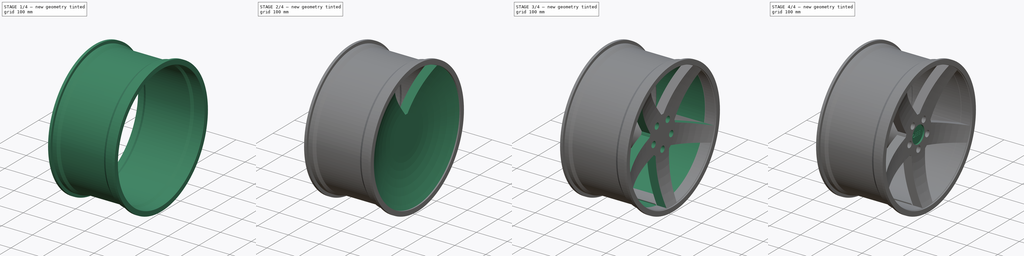
[diagram: build sequence overview — one tinted view per stage of 4, left to right]
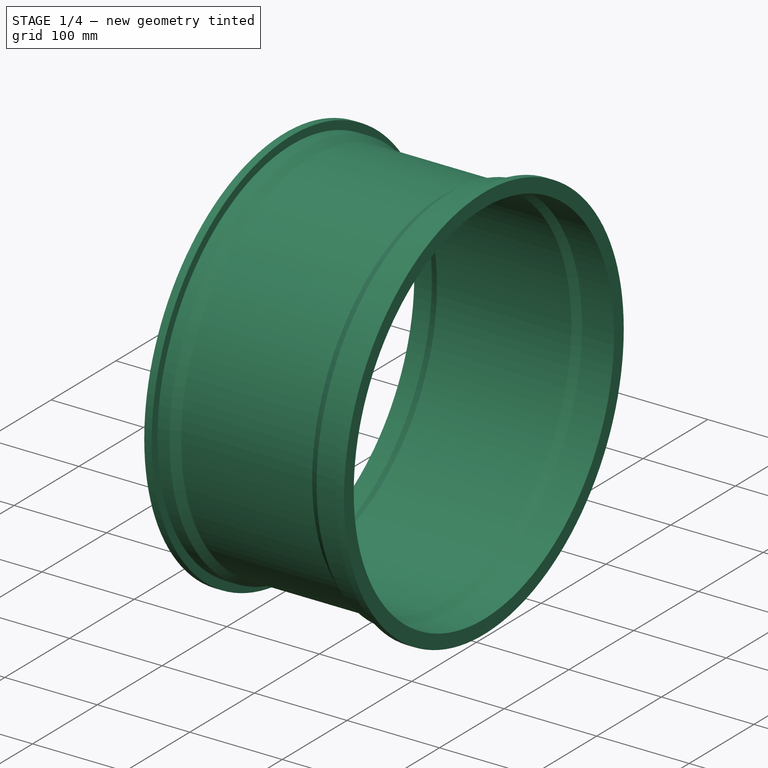
[diagram: stage 1 of 4 — iso view after this stage's code; geometry added in this stage tinted green]
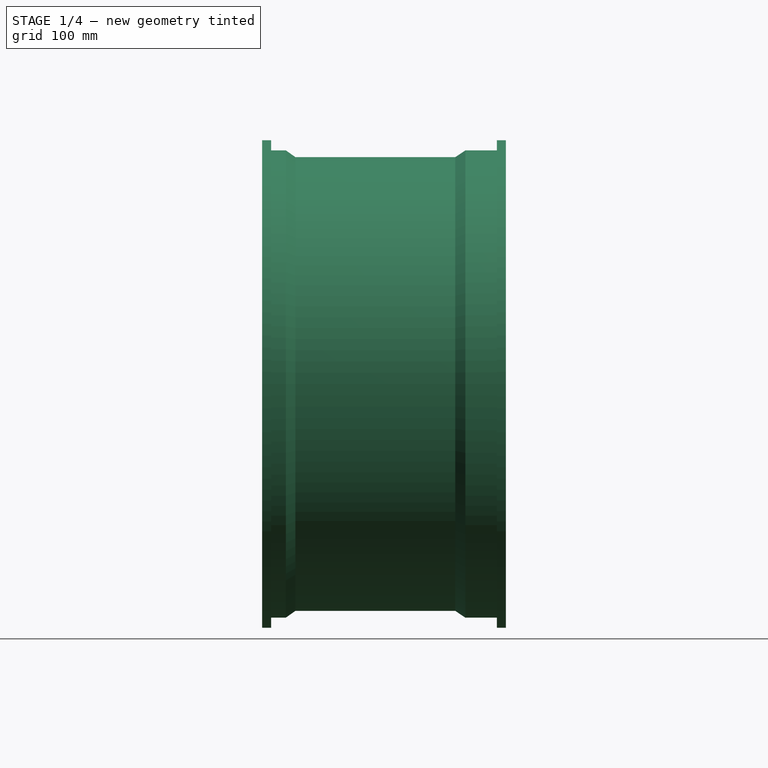
[diagram: stage 1 of 4 — front view after this stage's code; geometry added in this stage tinted green]
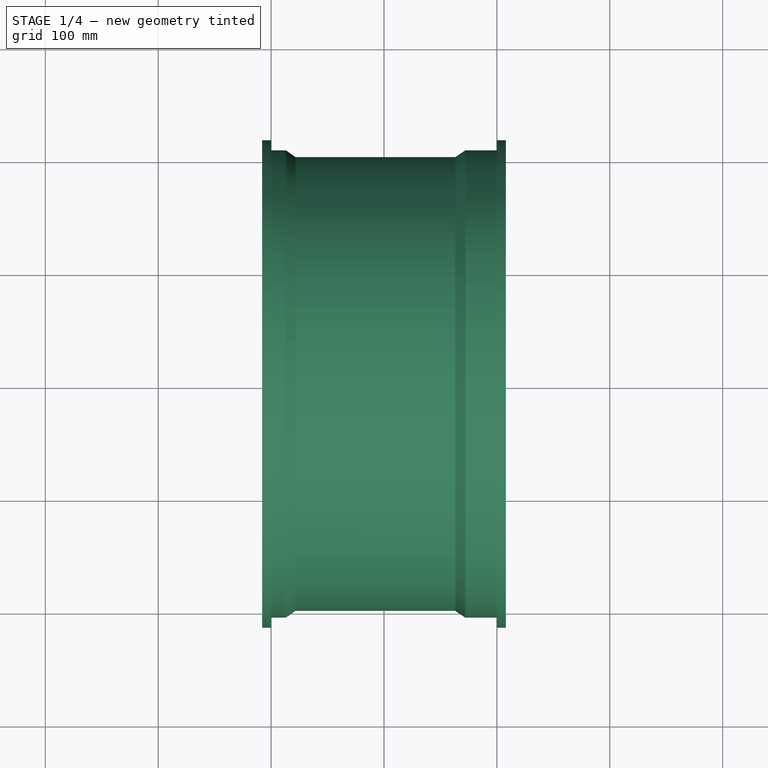
[diagram: stage 1 of 4 — top view after this stage's code; geometry added in this stage tinted green]
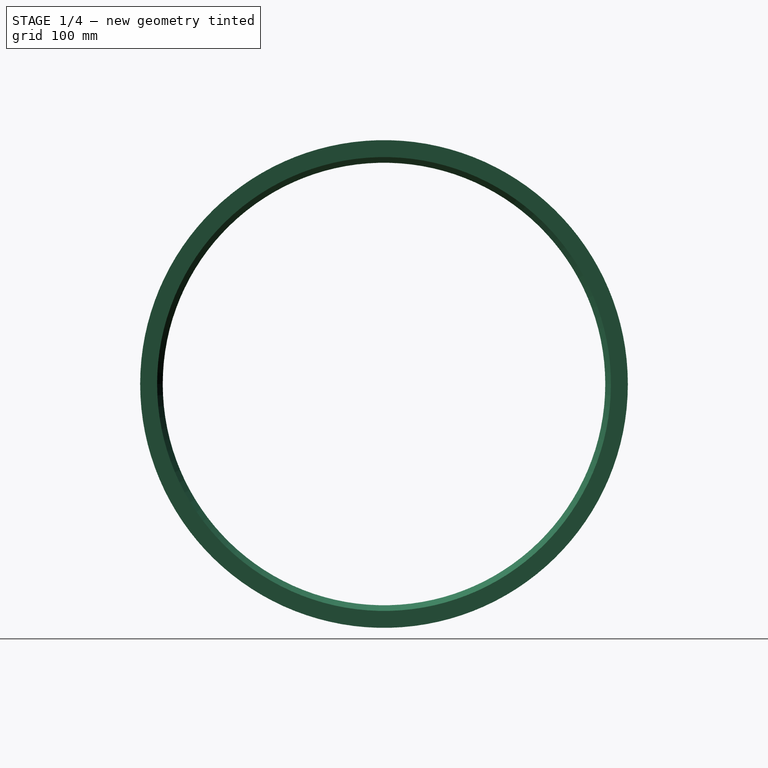
[diagram: stage 1 of 4 — right view after this stage's code; geometry added in this stage tinted green]
FCSTD DOCUMENT  (FreeCAD 0.18R4 (GitTag))
Label: VossenCV3
License: All rights reserved
LicenseURL: http://en.wikipedia.org/wiki/All_rights_reserved
objects: Sketcher::SketchObject×8, PartDesign::Pocket×6, PartDesign::Revolution×2, PartDesign::PolarPattern×2, PartDesign::Body×1
note: 27 computed .brp shape members not serialized (recipe doc carries the construction recipe); baked Part::Feature solids carry a one-line shape summary decoded from their .brp

FEATURE [Sketcher::SketchObject] Sketch
  MapMode = 5
  Support = -> [XY_Plane]
  sketch-geometry (21):
    g0: LineSegment [constr] StartX=-108 StartY=216 StartZ=0 EndX=108 EndY=216 EndZ=0
    g1: LineSegment [constr] StartX=108 StartY=216 StartZ=0 EndX=108 EndY=-216 EndZ=0
    g2: LineSegment [constr] StartX=108 StartY=-216 StartZ=0 EndX=-108 EndY=-216 EndZ=0
    g3: LineSegment [constr] StartX=-108 StartY=-216 StartZ=0 EndX=-108 EndY=216 EndZ=0
    g4: LineSegment StartX=65.3985 StartY=196 StartZ=0 EndX=73.2836 EndY=201 EndZ=0
    g5: LineSegment StartX=73.2836 StartY=201 StartZ=0 EndX=108 EndY=201 EndZ=0
    g6: LineSegment StartX=108 StartY=201 StartZ=0 EndX=108 EndY=216 EndZ=0
    g7: LineSegment StartX=108 StartY=216 StartZ=0 EndX=100 EndY=216 EndZ=0
    g8: LineSegment StartX=100 StartY=216 StartZ=0 EndX=100 EndY=207 EndZ=0
    g9: LineSegment StartX=100 StartY=207 StartZ=0 EndX=72.0305 EndY=207 EndZ=0
    g10: LineSegment StartX=72.0305 StartY=207 StartZ=0 EndX=63.161 EndY=201.026 EndZ=0
    g11: LineSegment StartX=-78.4786 StartY=201.026 StartZ=0 EndX=-86.9086 EndY=207 EndZ=0
    g12: LineSegment StartX=-86.9086 StartY=207 StartZ=0 EndX=-100 EndY=207 EndZ=0
    g13: LineSegment StartX=-100 StartY=207 StartZ=0 EndX=-100 EndY=216 EndZ=0
    g14: LineSegment StartX=-100 StartY=216 StartZ=0 EndX=-108 EndY=216 EndZ=0
    g15: LineSegment StartX=-108 StartY=216 StartZ=0 EndX=-108 EndY=201 EndZ=0
    g16: LineSegment StartX=-108 StartY=201 StartZ=0 EndX=-99.2981 EndY=201 EndZ=0
    g17: LineSegment StartX=-99.2981 StartY=201 StartZ=0 EndX=-89.0181 EndY=201 EndZ=0
    g18: LineSegment StartX=-89.0181 StartY=201 StartZ=0 EndX=-80.0096 EndY=196 EndZ=0
    g19: LineSegment StartX=-78.4786 StartY=201.026 StartZ=0 EndX=63.161 EndY=201.026 EndZ=0
    g20: LineSegment StartX=-80.0096 StartY=196 StartZ=0 EndX=65.3985 EndY=196 EndZ=0
  constraints (48):
    c: Coincident(g0,g1)
    c: Coincident(g1,g2)
    c: Coincident(g2,g3)
    c: Coincident(g3,g0)
    c: Horizontal(g2)
    c: Vertical(g3)
    c: DistanceX(g0,g0) = 216
    c: DistanceY(g1,g1) = 432
    c: Symmetric(g0,g0,g-2)
    c: Symmetric(g1,g0,g-1)
    c: Coincident(g4,g5)
    c: Coincident(g5,g6)
    c: Coincident(g6,g7)
    c: Coincident(g7,g8)
    c: Coincident(g8,g9)
    c: Coincident(g9,g10)
    c: Coincident(g11,g12)
    c: Coincident(g12,g13)
    c: Coincident(g13,g14)
    c: Coincident(g14,g15)
    c: Coincident(g15,g16)
    c: Coincident(g16,g17)
    c: Coincident(g17,g18)
    c: Horizontal(g5)
    c: Horizontal(g9)
    c: Vertical(g6)
    c: Vertical(g8)
    c: Horizontal(g12)
    c: Horizontal(g17)
    c: Horizontal(g16)
    c: Vertical(g13)
    c: Vertical(g15)
    c: Horizontal(g7)
    c: Horizontal(g14)
    c: DistanceX(g14,g14) = 8
    c: DistanceY(g15,g14) = 15
    c: Coincident(g0,g14)
    c: DistanceY(g12,g13) = 9
    c: DistanceY(g6,g6) = 15
    c: DistanceX(g7,g7) = 8
    c: Coincident(g0,g6)
    c: DistanceY(g8,g7) = 9
    c: Horizontal(g19)
    c: Coincident(g10,g19)
    c: Coincident(g19,g11)
    c: Horizontal(g20)
    c: Coincident(g20,g18)
    c: Coincident(g4,g20)
FEATURE [PartDesign::Revolution] Revolution
  Angle = 360
  Axis = (1,0,0)
  Base = (0,0,0)
  Profile = -> Sketch
  ReferenceAxis = -> Sketch [H_Axis]
FEATURE [Sketcher::SketchObject] Sketch001
  MapMode = 5
  Placement = pos=(0,0,0) rot=(1,0,0;1.5708rad)
  Support = -> [XZ_Plane]
  sketch-geometry (9):
    g0: LineSegment StartX=0 StartY=0 StartZ=0 EndX=72.6833 EndY=0 EndZ=0
    g1: LineSegment StartX=72.6833 StartY=0 StartZ=0 EndX=72.6833 EndY=60 EndZ=0
    g2: LineSegment StartX=106.769 StartY=206.912 StartZ=0 EndX=100.988 EndY=206.912 EndZ=0
    g3: LineSegment StartX=44.5959 StartY=60 StartZ=0 EndX=0 EndY=60 EndZ=0
    g4: LineSegment StartX=0 StartY=60 StartZ=0 EndX=0 EndY=0 EndZ=0
    g5: ArcOfCircle CenterX=397.907 CenterY=61.9544 CenterZ=0 NormalX=0 NormalY=0 NormalZ=1 AngleXU=0 Radius=325.23 StartAngle=2.67963 EndAngle=3.1476
    g6: ArcOfCircle CenterX=397.907 CenterY=61.9544 CenterZ=0 NormalX=0 NormalY=0 NormalZ=1 AngleXU=0 Radius=353.317 StartAngle=2.73812 EndAngle=3.14712
    g7: LineSegment StartX=100.988 StartY=206.912 StartZ=0 EndX=100.988 EndY=200.673 EndZ=0
    g8: LineSegment StartX=72.9614 StartY=200.673 StartZ=0 EndX=100.988 EndY=200.673 EndZ=0
  constraints (21):
    c: Coincident(g0,g1)
    c: Vertical(g1)
    c: Horizontal(g0)
    c: Coincident(g3,g4)
    c: Coincident(g4,g0)
    c: Coincident(g0,g-1)
    c: Horizontal(g3)
    c: Vertical(g4)
    c: DistanceY(g1,g1) = 60
    c: DistanceY(g4,g4) = 60
    c: Coincident(g5,g1)
    c: Coincident(g3,g6)
    c: Coincident(g5,g2)
    c: Horizontal(g2)
    c: Coincident(g7,g2)
    c: Vertical(g7)
    c: Horizontal(g8)
    c: Coincident(g7,g8)
    c: Coincident(g6,g8)
    c: Coincident(g5,g6)
    c: Distance(g5,g1) = 325.23
FEATURE [Sketcher::SketchObject] Sketch002
  MapMode = 5
  Placement = pos=(100.668,0,0) rot=(0.57735,0.57735,0.57735;2.0944rad)
  sketch-geometry (1):
    g0: Circle CenterX=0 CenterY=0 CenterZ=0 NormalX=0 NormalY=0 NormalZ=1 AngleXU=0 Radius=50
  constraints (1):
    c: Radius(g0) = 50
FEATURE [PartDesign::Pocket] Pocket
  BaseFeature = -> Revolution
  Length = 25
  Length2 = 100
  Profile = -> Sketch002
  Type = 0
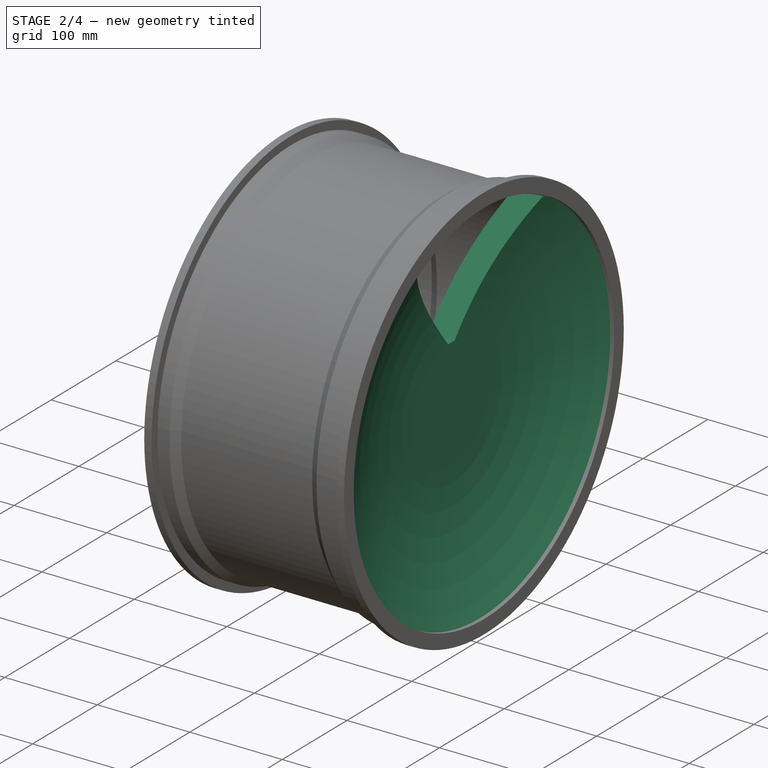
[diagram: stage 2 of 4 — iso view after this stage's code; geometry added in this stage tinted green]
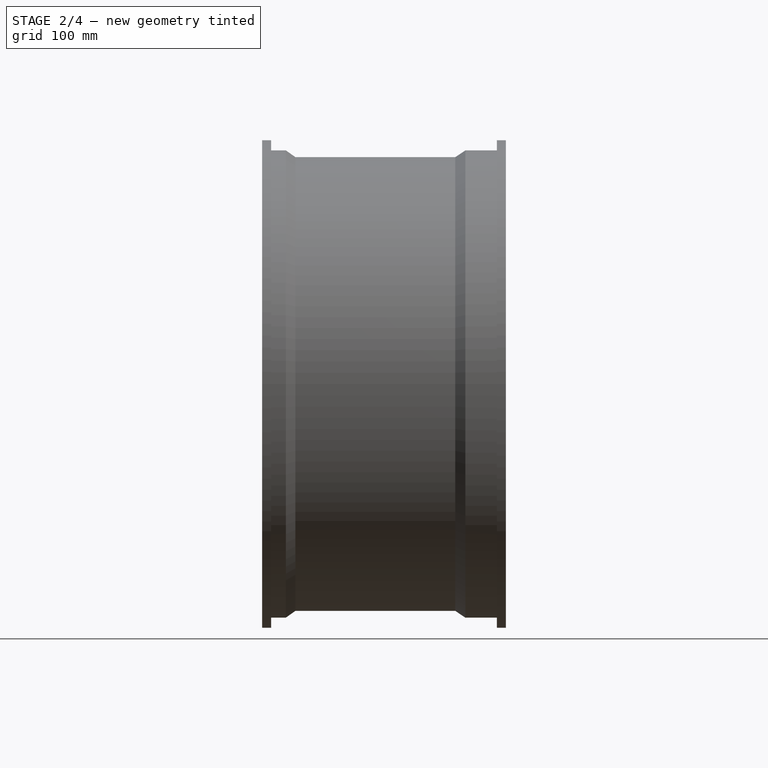
[diagram: stage 2 of 4 — front view after this stage's code; geometry added in this stage tinted green]
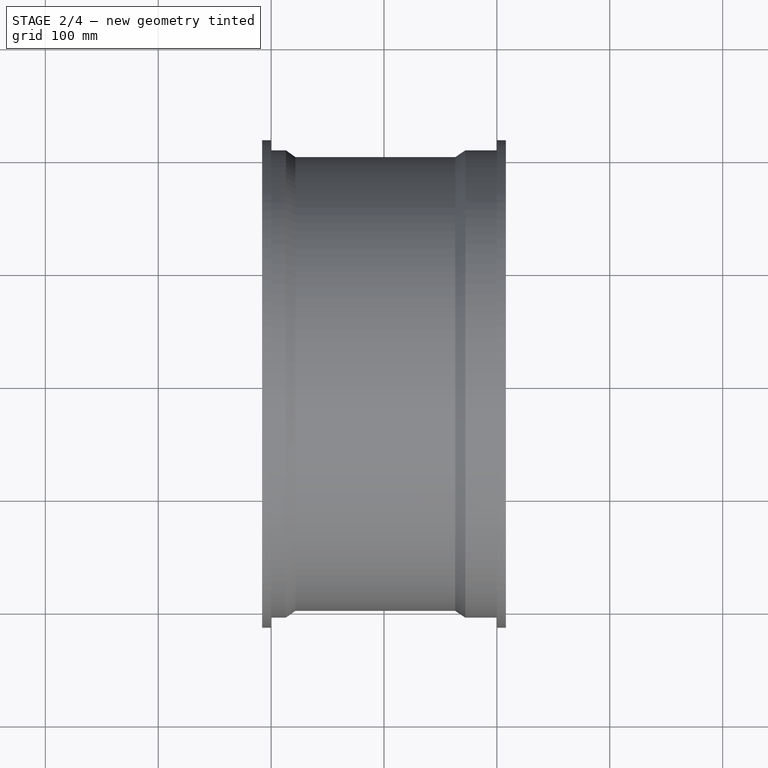
[diagram: stage 2 of 4 — top view after this stage's code; geometry added in this stage tinted green]
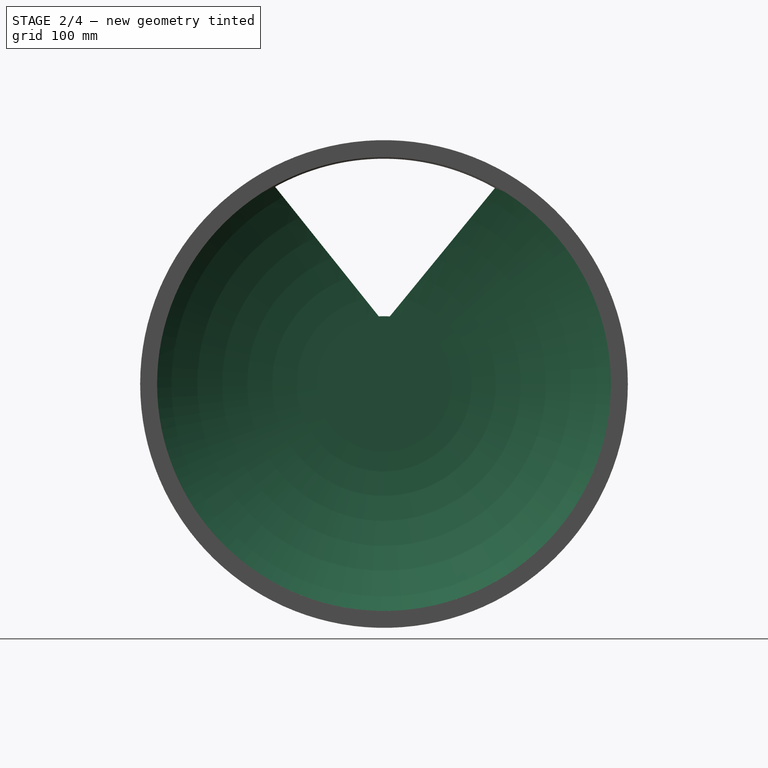
[diagram: stage 2 of 4 — right view after this stage's code; geometry added in this stage tinted green]
FEATURE [Sketcher::SketchObject] Sketch004
  MapMode = 5
  Placement = pos=(0,0,0) rot=(0.57735,0.57735,0.57735;2.0944rad)
  Support = -> [YZ_Plane]
  sketch-geometry (1):
    g0: Circle CenterX=-0.107707 CenterY=35 CenterZ=0 NormalX=0 NormalY=0 NormalZ=1 AngleXU=0 Radius=10
  constraints (2):
    c: Radius(g0) = 10
    c: DistanceY(g-1,g0) = 35
FEATURE [PartDesign::Pocket] Pocket002
  BaseFeature = -> Pocket
  Length = 5
  Length2 = 100
  Midplane = true
  Profile = -> Sketch004
  Type = 1
FEATURE [Sketcher::SketchObject] Sketch005
  MapMode = 5
  Placement = pos=(0,0,0) rot=(0.57735,0.57735,0.57735;2.0944rad)
  Support = -> [YZ_Plane]
  sketch-geometry (6):
    g0: Circle [constr] CenterX=0 CenterY=0 CenterZ=0 NormalX=0 NormalY=0 NormalZ=1 AngleXU=0 Radius=60
    g1: Circle [constr] CenterX=9.5e-15 CenterY=-6.35646e-06 CenterZ=0 NormalX=0 NormalY=0 NormalZ=1 AngleXU=0 Radius=200
    g2: LineSegment StartX=5.09378 StartY=59.8383 StartZ=0 EndX=98.2671 EndY=173.557 EndZ=0
    g3: LineSegment StartX=-4.58286 StartY=59.8796 StartZ=0 EndX=-96.4895 EndY=174.717 EndZ=0
    g4: ArcOfCircle CenterX=-0.145479 CenterY=0.524846 CenterZ=0 NormalX=0 NormalY=0 NormalZ=1 AngleXU=0 Radius=199.06 StartAngle=1.05367 EndAngle=2.07601
    g5: ArcOfCircle CenterX=4.07695e-08 CenterY=5.47406e-08 CenterZ=0 NormalX=0 NormalY=0 NormalZ=1 AngleXU=0 Radius=60.0547 StartAngle=1.48588 EndAngle=1.64718
  constraints (8):
    c: Radius(g0) = 60
    c: Radius(g1) = 200
    c: Coincident(g0,g-1)
    c: Angle(g2,g3) = 1.36136
    c: Coincident(g2,g4)
    c: Coincident(g4,g3)
    c: Coincident(g5,g2)
    c: Coincident(g5,g3)
FEATURE [PartDesign::Revolution] Revolution001
  Angle = 360
  Axis = (1,0,0)
  Base = (0,0,0)
  BaseFeature = -> Pocket002
  Profile = -> Sketch001
  ReferenceAxis = -> Sketch001 [H_Axis]
FEATURE [PartDesign::Pocket] Pocket003
  BaseFeature = -> Revolution001
  Length = 5
  Length2 = 100
  Midplane = true
  Profile = -> Sketch005
  Type = 1
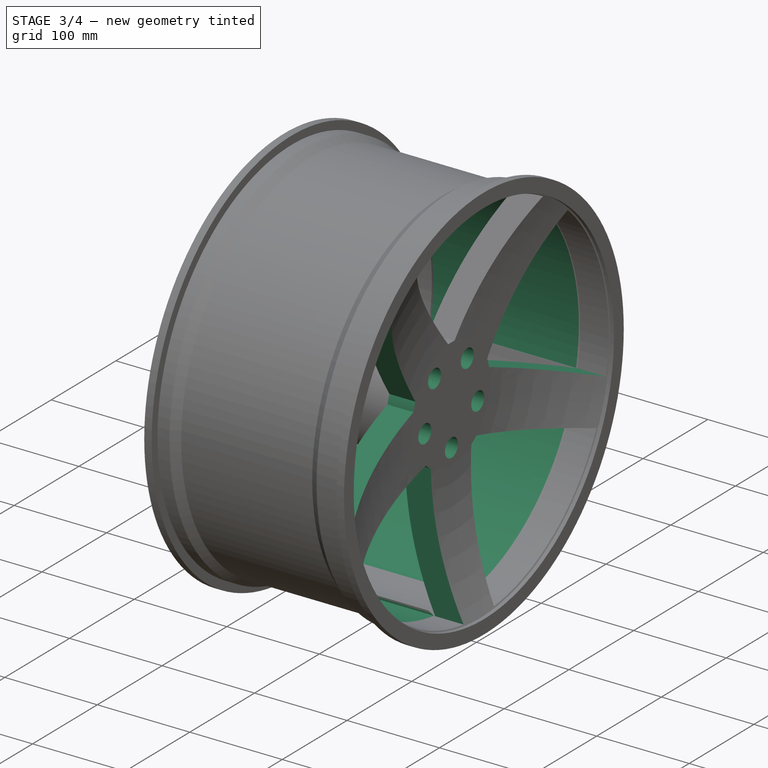
[diagram: stage 3 of 4 — iso view after this stage's code; geometry added in this stage tinted green]
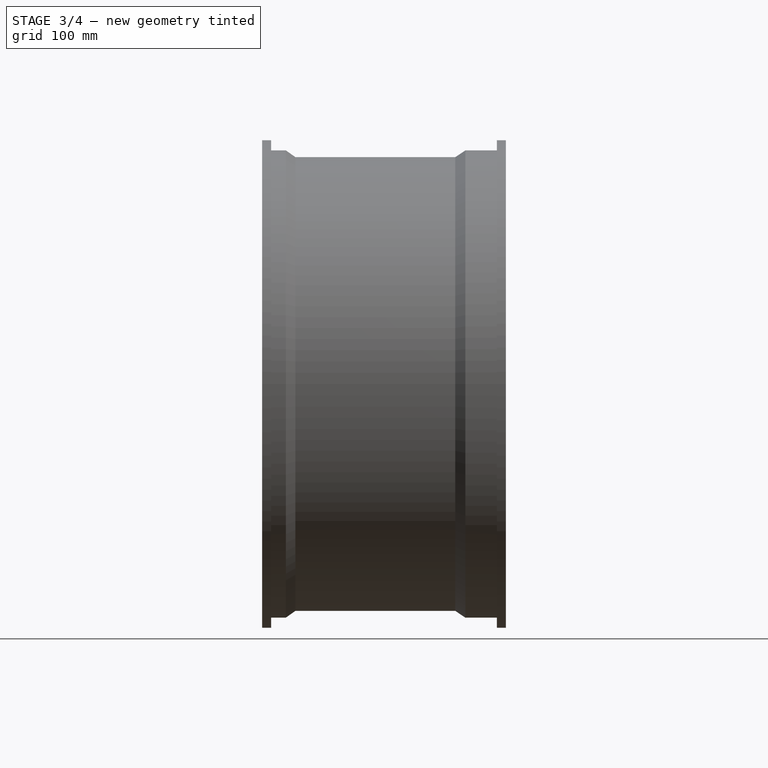
[diagram: stage 3 of 4 — front view after this stage's code; geometry added in this stage tinted green]
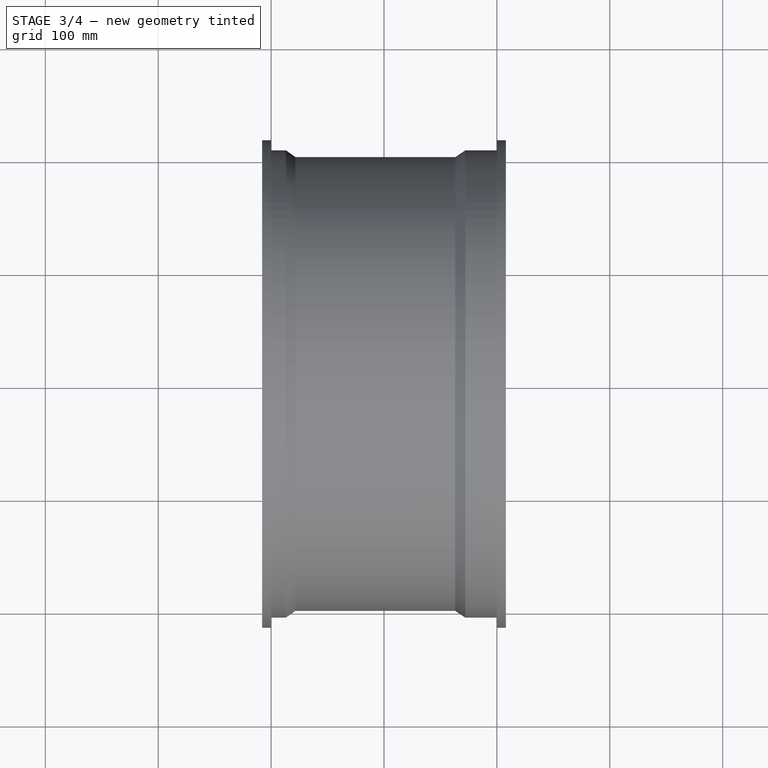
[diagram: stage 3 of 4 — top view after this stage's code; geometry added in this stage tinted green]
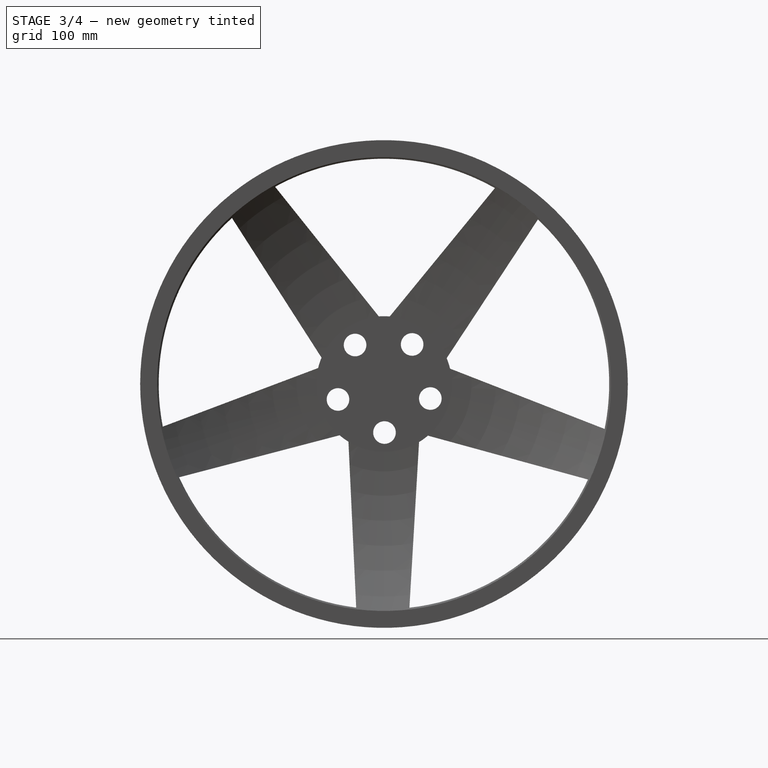
[diagram: stage 3 of 4 — right view after this stage's code; geometry added in this stage tinted green]
FEATURE [PartDesign::PolarPattern] PolarPattern
  Angle = 360
  Axis = -> Sketch005 [N_Axis]
  BaseFeature = -> Pocket003
  Occurrences = 5
  Originals = -> [Pocket003]
FEATURE [Sketcher::SketchObject] Sketch006
  MapMode = 5
  Placement = pos=(72.6833,0,0) rot=(0.57735,0.57735,0.57735;2.0944rad)
  Support = -> [PolarPattern]
  sketch-geometry (1):
    g0: Circle CenterX=-25.6238 CenterY=34.5314 CenterZ=0 NormalX=0 NormalY=0 NormalZ=1 AngleXU=0 Radius=10
  constraints (2):
    c: Distance(g-1,g0) = 43
    c: Radius(g0) = 10
FEATURE [PartDesign::Pocket] Pocket004
  BaseFeature = -> PolarPattern
  Length = 5
  Length2 = 100
  Profile = -> Sketch006
  Type = 1
FEATURE [PartDesign::PolarPattern] PolarPattern001
  Angle = 360
  Axis = -> Sketch006 [N_Axis]
  BaseFeature = -> Pocket004
  Occurrences = 5
  Originals = -> [Pocket004]
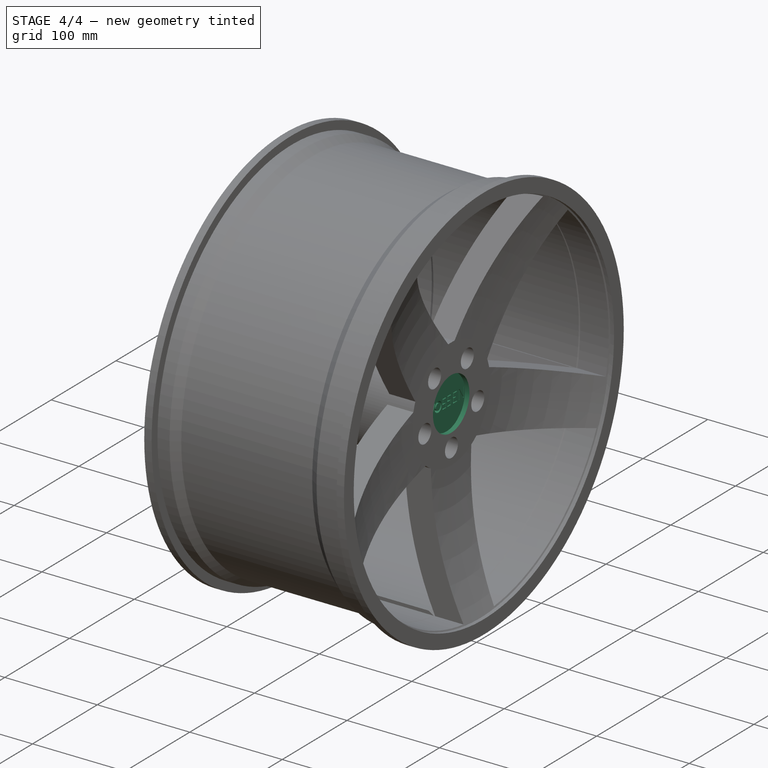
[diagram: stage 4 of 4 — iso view after this stage's code; geometry added in this stage tinted green]
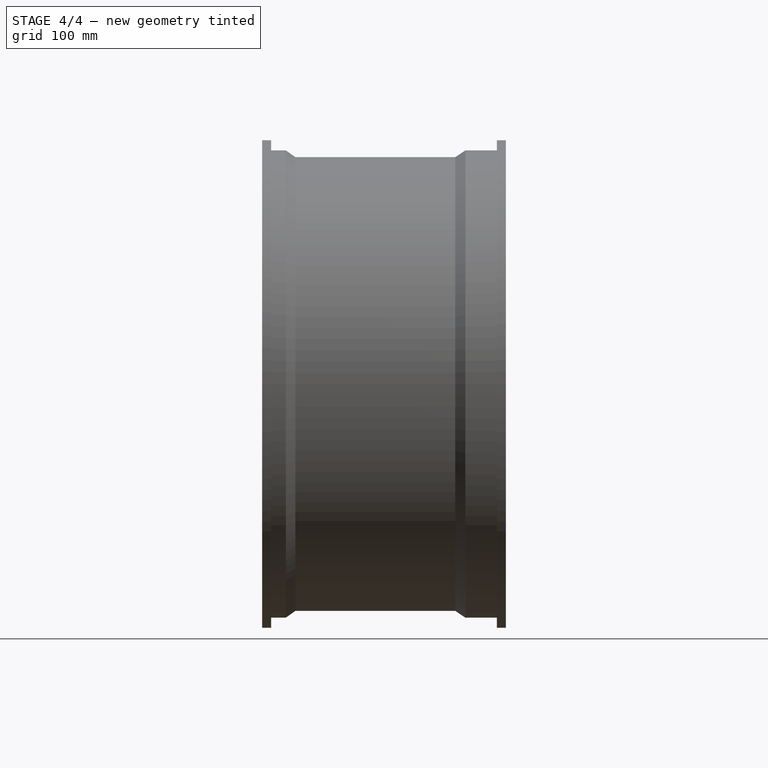
[diagram: stage 4 of 4 — front view after this stage's code; geometry added in this stage tinted green]
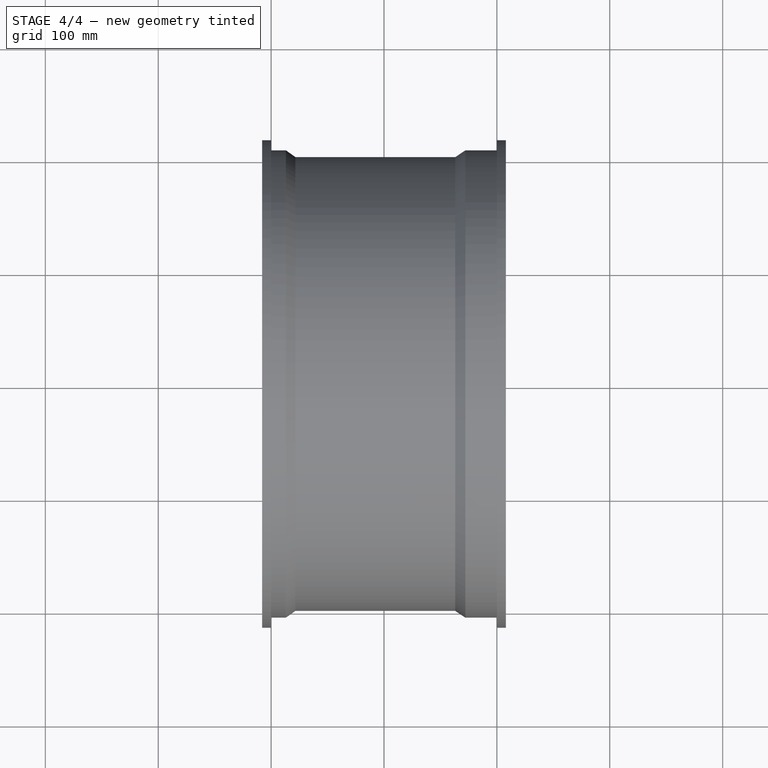
[diagram: stage 4 of 4 — top view after this stage's code; geometry added in this stage tinted green]
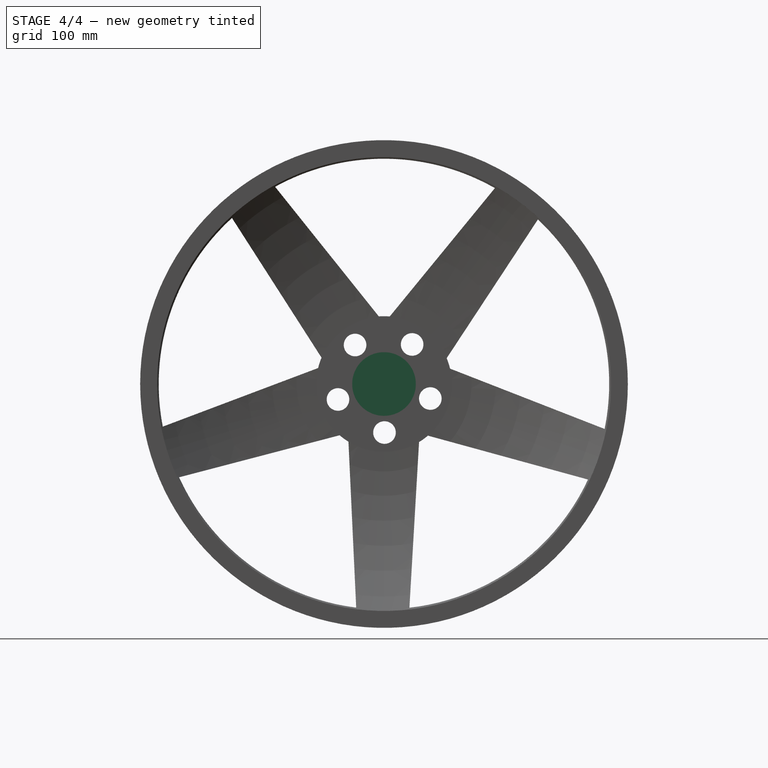
[diagram: stage 4 of 4 — right view after this stage's code; geometry added in this stage tinted green]
FEATURE [Sketcher::SketchObject] Sketch007
  MapMode = 5
  Placement = pos=(72.6833,0,0) rot=(0.57735,0.57735,0.57735;2.0944rad)
  Support = -> [PolarPattern001]
  sketch-geometry (1):
    g0: Circle CenterX=0 CenterY=0 CenterZ=0 NormalX=0 NormalY=0 NormalZ=1 AngleXU=0 Radius=28.1891
FEATURE [PartDesign::Pocket] Pocket005
  BaseFeature = -> PolarPattern001
  Length = 5
  Length2 = 100
  Profile = -> Sketch007
  Type = 0
FEATURE [Sketcher::SketchObject] Sketch008
  MapMode = 5
  Placement = pos=(67.6833,0,0) rot=(0.57735,0.57735,0.57735;2.0944rad)
  Support = -> [Pocket005]
  sketch-geometry (56):
    g0: Circle CenterX=-13.0317 CenterY=0.552048 CenterZ=0 NormalX=0 NormalY=0 NormalZ=1 AngleXU=0 Radius=5.5
    g1: Circle CenterX=-13.0317 CenterY=0.552048 CenterZ=0 NormalX=0 NormalY=0 NormalZ=1 AngleXU=0 Radius=3.5
    g2: LineSegment StartX=-0.595631 StartY=4.7007 StartZ=0 EndX=-5.06037 EndY=4.7007 EndZ=0
    g3: LineSegment StartX=-5.06037 StartY=4.7007 StartZ=0 EndX=-5.06037 EndY=0.865476 EndZ=0
    g4: LineSegment StartX=-5.06037 StartY=0.865476 StartZ=0 EndX=-0.60059 EndY=0.865476 EndZ=0
    g5: LineSegment StartX=-0.60059 StartY=0.865476 StartZ=0 EndX=-0.60059 EndY=-4.83658 EndZ=0
    g6: LineSegment StartX=-0.60059 StartY=-4.83658 StartZ=0 EndX=-6.23953 EndY=-4.83658 EndZ=0
    g7: LineSegment StartX=-6.23953 StartY=-4.83658 StartZ=0 EndX=-6.23953 EndY=-3.90317 EndZ=0
    g8: LineSegment StartX=-6.23953 StartY=-3.90317 StartZ=0 EndX=-1.77478 EndY=-3.90317 EndZ=0
    g9: LineSegment StartX=-1.77478 StartY=-3.90317 StartZ=0 EndX=-1.77478 EndY=-0.0679411 EndZ=0
    g10: LineSegment StartX=-1.77478 StartY=-0.0679411 StartZ=0 EndX=-6.23457 EndY=-0.0679411 EndZ=0
    g11: LineSegment StartX=-6.23457 StartY=-0.0679411 StartZ=0 EndX=-6.23457 EndY=5.63412 EndZ=0
    g12: LineSegment StartX=-6.23457 StartY=5.63412 StartZ=0 EndX=-0.595631 EndY=5.63412 EndZ=0
    g13: LineSegment StartX=-0.595631 StartY=5.63412 StartZ=0 EndX=-0.595631 EndY=4.7007 EndZ=0
    g14: LineSegment StartX=-27.2125 StartY=5.96222 StartZ=0 EndX=-22.54 EndY=-4.77923 EndZ=0
    g15: LineSegment StartX=-22.54 StartY=-4.77923 StartZ=0 EndX=-17.4403 EndY=5.76615 EndZ=0
    g16: LineSegment StartX=-17.4403 StartY=5.76615 StartZ=0 EndX=-18.9912 EndY=5.76615 EndZ=0
    g17: LineSegment StartX=-18.9912 StartY=5.76615 StartZ=0 EndX=-22.54 EndY=-1.40096 EndZ=0
    g18: LineSegment StartX=-22.54 StartY=-1.40096 StartZ=0 EndX=-25.6617 EndY=5.96222 EndZ=0
    g19: LineSegment StartX=-25.6617 StartY=5.96222 StartZ=0 EndX=-27.2125 EndY=5.96222 EndZ=0
    g20: LineSegment StartX=6.93937 StartY=5.69633 StartZ=0 EndX=1.30043 EndY=5.69633 EndZ=0
    g21: LineSegment StartX=1.30043 StartY=5.69633 StartZ=0 EndX=1.30043 EndY=-0.00572814 EndZ=0
    g22: LineSegment StartX=1.30043 StartY=-0.00572814 StartZ=0 EndX=5.76021 EndY=-0.00572814 EndZ=0
    g23: LineSegment StartX=5.76021 StartY=-0.00572814 StartZ=0 EndX=5.76021 EndY=-3.84095 EndZ=0
    g24: LineSegment StartX=5.76021 StartY=-3.84095 StartZ=0 EndX=1.29547 EndY=-3.84095 EndZ=0
    g25: LineSegment StartX=1.29547 StartY=-3.84095 StartZ=0 EndX=1.29547 EndY=-4.77437 EndZ=0
    g26: LineSegment StartX=1.29547 StartY=-4.77437 StartZ=0 EndX=6.93441 EndY=-4.77437 EndZ=0
    g27: LineSegment StartX=6.93441 StartY=-4.77437 StartZ=0 EndX=6.93441 EndY=0.927689 EndZ=0
    g28: LineSegment StartX=6.93441 StartY=0.927689 StartZ=0 EndX=2.47462 EndY=0.927689 EndZ=0
    g29: LineSegment StartX=2.47462 StartY=0.927689 StartZ=0 EndX=2.47462 EndY=4.76292 EndZ=0
    g30: LineSegment StartX=2.47462 StartY=4.76292 StartZ=0 EndX=6.93937 EndY=4.76292 EndZ=0
    g31: LineSegment StartX=6.93937 StartY=4.76292 StartZ=0 EndX=6.93937 EndY=5.69633 EndZ=0
    g32: LineSegment StartX=16.2827 StartY=5.60954 StartZ=0 EndX=9.96476 EndY=5.60954 EndZ=0
    g33: LineSegment StartX=9.96476 StartY=5.60954 StartZ=0 EndX=9.96476 EndY=3.70602 EndZ=0
    g34: LineSegment StartX=9.96476 StartY=3.70602 StartZ=0 EndX=9.96476 EndY=0.83395 EndZ=0
    g35: LineSegment StartX=14.4306 StartY=0.83395 StartZ=0 EndX=11.2001 EndY=0.83395 EndZ=0
    g36: LineSegment StartX=9.96476 StartY=0.83395 StartZ=0 EndX=9.96476 EndY=-4.90785 EndZ=0
    g37: LineSegment StartX=9.96476 StartY=-4.90785 StartZ=0 EndX=16.2827 EndY=-4.90785 EndZ=0
    g38: LineSegment StartX=16.2827 StartY=-4.90785 StartZ=0 EndX=16.2827 EndY=-4.05706 EndZ=0
    g39: LineSegment StartX=16.2827 StartY=-4.05706 StartZ=0 EndX=11.2001 EndY=-4.05706 EndZ=0
    g40: LineSegment StartX=11.2001 StartY=-4.05706 StartZ=0 EndX=11.2001 EndY=-0.0168472 EndZ=0
    g41: LineSegment StartX=11.2001 StartY=-0.0168472 StartZ=0 EndX=14.4306 EndY=-0.0168472 EndZ=0
    g42: LineSegment StartX=14.4306 StartY=-0.0168472 StartZ=0 EndX=14.4306 EndY=0.83395 EndZ=0
    g43: LineSegment StartX=16.2827 StartY=5.60954 StartZ=0 EndX=16.2827 EndY=4.75874 EndZ=0
    g44: LineSegment StartX=16.2827 StartY=4.75874 StartZ=0 EndX=11.2001 EndY=4.75874 EndZ=0
    g45: LineSegment StartX=11.2001 StartY=4.75874 StartZ=0 EndX=11.2001 EndY=0.83395 EndZ=0
    g46: LineSegment StartX=18.976 StartY=5.5988 StartZ=0 EndX=18.976 EndY=-5.03131 EndZ=0
    g47: LineSegment StartX=18.976 StartY=-5.03131 StartZ=0 EndX=19.9821 EndY=-5.03131 EndZ=0
    g48: LineSegment StartX=19.9821 StartY=-5.03131 StartZ=0 EndX=19.9821 EndY=4.48626 EndZ=0
    g49: LineSegment StartX=19.9821 StartY=5.5988 StartZ=0 EndX=25.6586 EndY=-3.85052 EndZ=0
    g50: LineSegment StartX=25.6586 StartY=-3.85052 StartZ=0 EndX=25.6586 EndY=5.66705 EndZ=0
    g51: LineSegment StartX=25.6586 StartY=5.66705 StartZ=0 EndX=26.6647 EndY=5.66705 EndZ=0
    g52: LineSegment StartX=26.6647 StartY=5.66705 StartZ=0 EndX=26.6647 EndY=-4.96306 EndZ=0
    g53: LineSegment StartX=26.6647 StartY=-4.96306 StartZ=0 EndX=25.6586 EndY=-4.96306 EndZ=0
    g54: LineSegment StartX=25.6586 StartY=-4.96306 StartZ=0 EndX=19.9821 EndY=4.48626 EndZ=0
    g55: LineSegment StartX=18.976 StartY=5.5988 StartZ=0 EndX=19.9821 EndY=5.5988 EndZ=0
  constraints (146):
    c: Coincident(g0,g1)
    c: Radius(g0) = 5.5
    c: Radius(g1) = 3.5
    c: Coincident(g2,g3)
    c: Coincident(g3,g4)
    c: Coincident(g4,g5)
    c: Coincident(g5,g6)
    c: Coincident(g6,g7)
    c: Coincident(g7,g8)
    c: Coincident(g8,g9)
    c: Coincident(g9,g10)
    c: Coincident(g10,g11)
    c: Coincident(g11,g12)
    c: Coincident(g2,g13)
    c: Horizontal(g6)
    c: Horizontal(g8)
    c: Vertical(g7)
    c: Vertical(g5)
    c: Vertical(g9)
    c: Horizontal(g2)
    c: Horizontal(g4)
    c: Horizontal(g10)
    c: Vertical(g13)
    c: Vertical(g11)
    c: Distance(g3,g10) = 1.5
    c: Distance(g2,g11) = 1.5
    c: Equal(g7,g13)
    c: Equal(g10,g4)
    c: Coincident(g13,g12)
    c: Equal(g2,g8)
    c: Equal(g12,g6)
    c: Equal(g11,g5)
    c: Equal(g9,g3)
    c: Coincident(g14,g15)
    c: Coincident(g15,g16)
    c: Coincident(g16,g17)
    c: Coincident(g17,g18)
    c: Coincident(g18,g19)
    c: Coincident(g19,g14)
    c: Horizontal(g16)
    c: Horizontal(g19)
    c: Equal(g19,g16)
    c: Equal(g15,g14)
    c: Equal(g17,g18)
    c: Vertical(g17,g14)
    c: Equal(g13,g7)
    c: Coincident(g20,g21)
    c: Coincident(g21,g22)
    c: Coincident(g22,g23)
    c: Coincident(g23,g24)
    c: Coincident(g24,g25)
    c: Coincident(g25,g26)
    c: Coincident(g26,g27)
    c: Coincident(g27,g28)
    c: Coincident(g28,g29)
    c: Coincident(g29,g30)
    c: Coincident(g30,g31)
    c: Coincident(g31,g20)
    c: Horizontal(g20)
    c: Horizontal(g30)
    c: Horizontal(g28)
    c: Horizontal(g22)
    c: Horizontal(g24)
    c: Horizontal(g26)
    c: Vertical(g25)
    c: Vertical(g27)
    c: Vertical(g23)
    c: Vertical(g29)
    c: Vertical(g21)
    c: Vertical(g31)
    c: Equal(g20,g6)
    c: Equal(g6,g26)
    c: Equal(g26,g12)
    c: Equal(g2,g30)
    c: Equal(g30,g24)
    c: Equal(g24,g8)
    c: Equal(g25,g31)
    c: Equal(g31,g13)
    c: Equal(g13,g7)
    c: Equal(g21,g27)
    c: Equal(g27,g5)
    c: Equal(g5,g11)
    c: Equal(g23,g3)
    c: Equal(g3,g9)
    c: Equal(g9,g29)
    c: Equal(g28,g4)
    c: Equal(g4,g10)
    c: Equal(g10,g22)
    c: Coincident(g32,g33)
    c: Coincident(g36,g37)
    c: Coincident(g37,g38)
    c: Coincident(g38,g39)
    c: Coincident(g39,g40)
    c: Coincident(g40,g41)
    c: Coincident(g41,g42)
    c: Distance(g39,g36) = 1.5
    c: Vertical(g40)
    c: Vertical(g36)
    c: Vertical(g38)
    c: Horizontal(g41)
    c: Horizontal(g35)
    c: Horizontal(g39)
    c: Horizontal(g37)
    c: Coincident(g34,g33)
    c: Coincident(g35,g42)
    c: Vertical(g42)
    c: Vertical(g33)
    c: Vertical(g34)
    c: Coincident(g43,g44)
    c: Coincident(g44,g45)
    c: Coincident(g36,g34)
    c: Coincident(g35,g45)
    c: Vertical(g45)
    c: Horizontal(g44)
    c: Equal(g44,g39)
    c: Equal(g43,g38)
    c: Equal(g42,g43)
    c: Distance(g44,g32) = 1.5
    c: Horizontal(g32)
    c: Distance(g40,g34) = 1.5
    c: Coincident(g32,g43)
    c: Vertical(g43)
    c: Coincident(g46,g47)
    c: Coincident(g47,g48)
    c: Coincident(g49,g50)
    c: Coincident(g50,g51)
    c: Coincident(g51,g52)
    c: Coincident(g52,g53)
    c: Coincident(g53,g54)
    c: Vertical(g46)
    c: Vertical(g52)
    c: Vertical(g50)
    c: Vertical(g48)
    c: Coincident(g54,g48)
    c: Coincident(g55,g49)
    c: Coincident(g55,g46)
    c: Horizontal(g53)
    c: Horizontal(g47)
    c: Horizontal(g55)
    c: Equal(g52,g46)
    c: Equal(g49,g54)
    c: Equal(g51,g55)
    c: Equal(g55,g47)
    c: Equal(g47,g53)
    c: Equal(g48,g50)
    c: Distance(g52,g49) = 1.5
FEATURE [PartDesign::Pocket] Pocket006
  BaseFeature = -> Pocket005
  Length = 5
  Length2 = 100
  Profile = -> Sketch008
  Type = 0
FEATURE [PartDesign::Body] Body
  Group = -> [Sketch,Revolution,Sketch001,Sketch002,Pocket,Sketch004,Pocket002,Sketch005,Revolution001,Pocket003,PolarPattern,Sketch006,Pocket004,PolarPattern001,Sketch007,Pocket005,Sketch008,Pocket006]
  Origin = -> Origin
  Tip = -> Pocket006
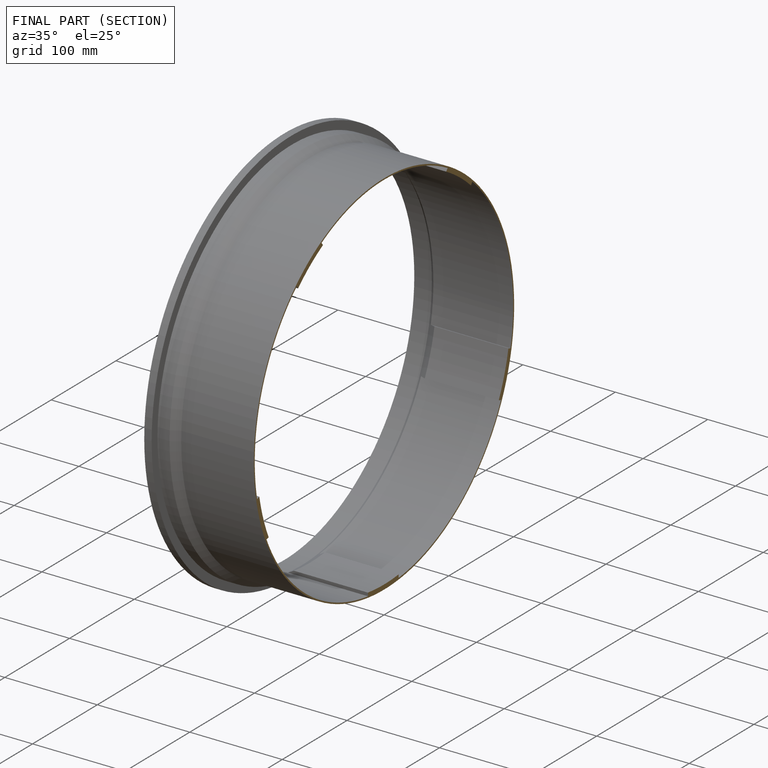
[diagram: finished part — half-section view (interior)]
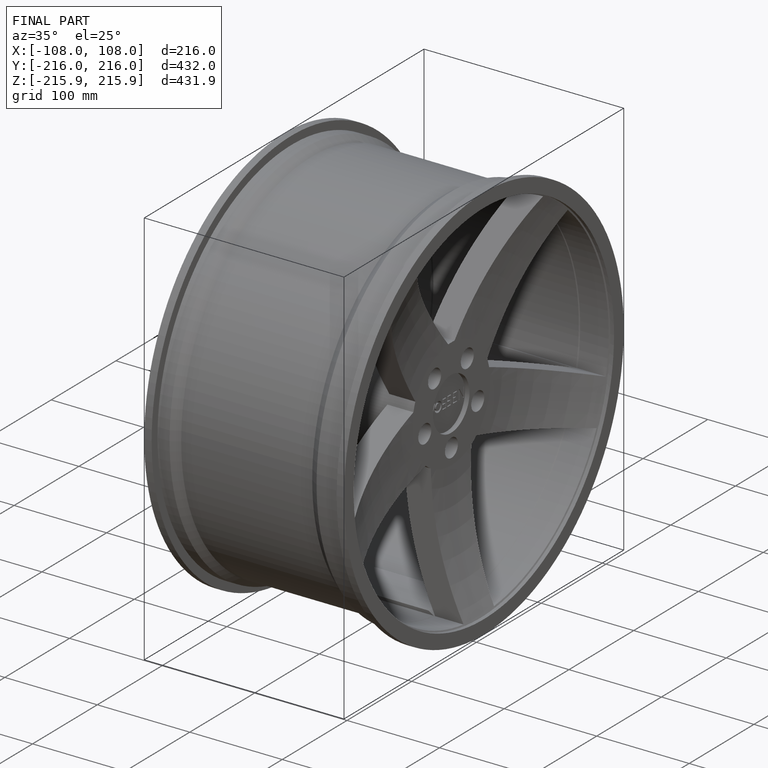
[diagram: finished part — iso view with bounding-box wireframe]
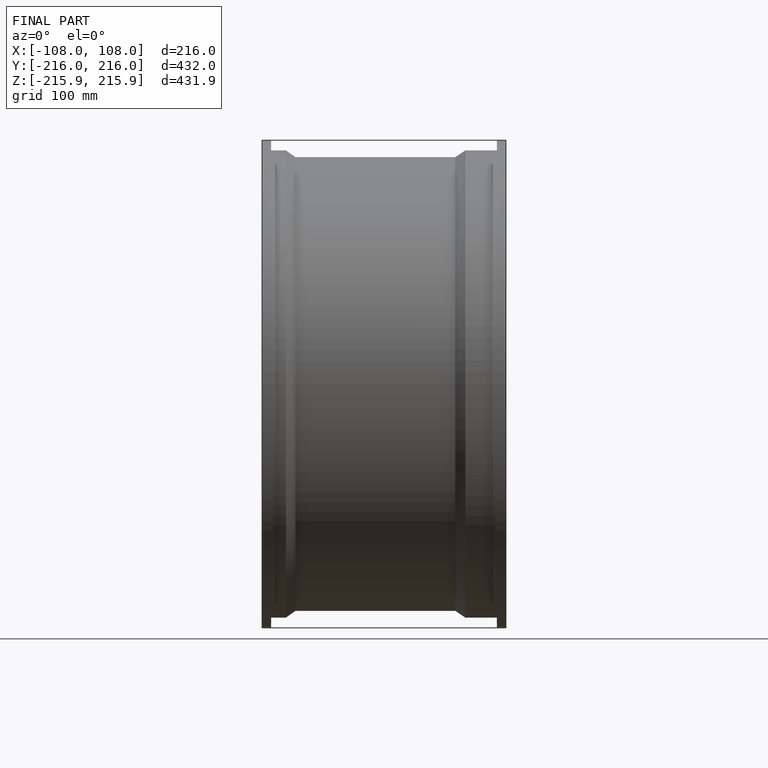
[diagram: finished part — front view with bounding-box wireframe]
